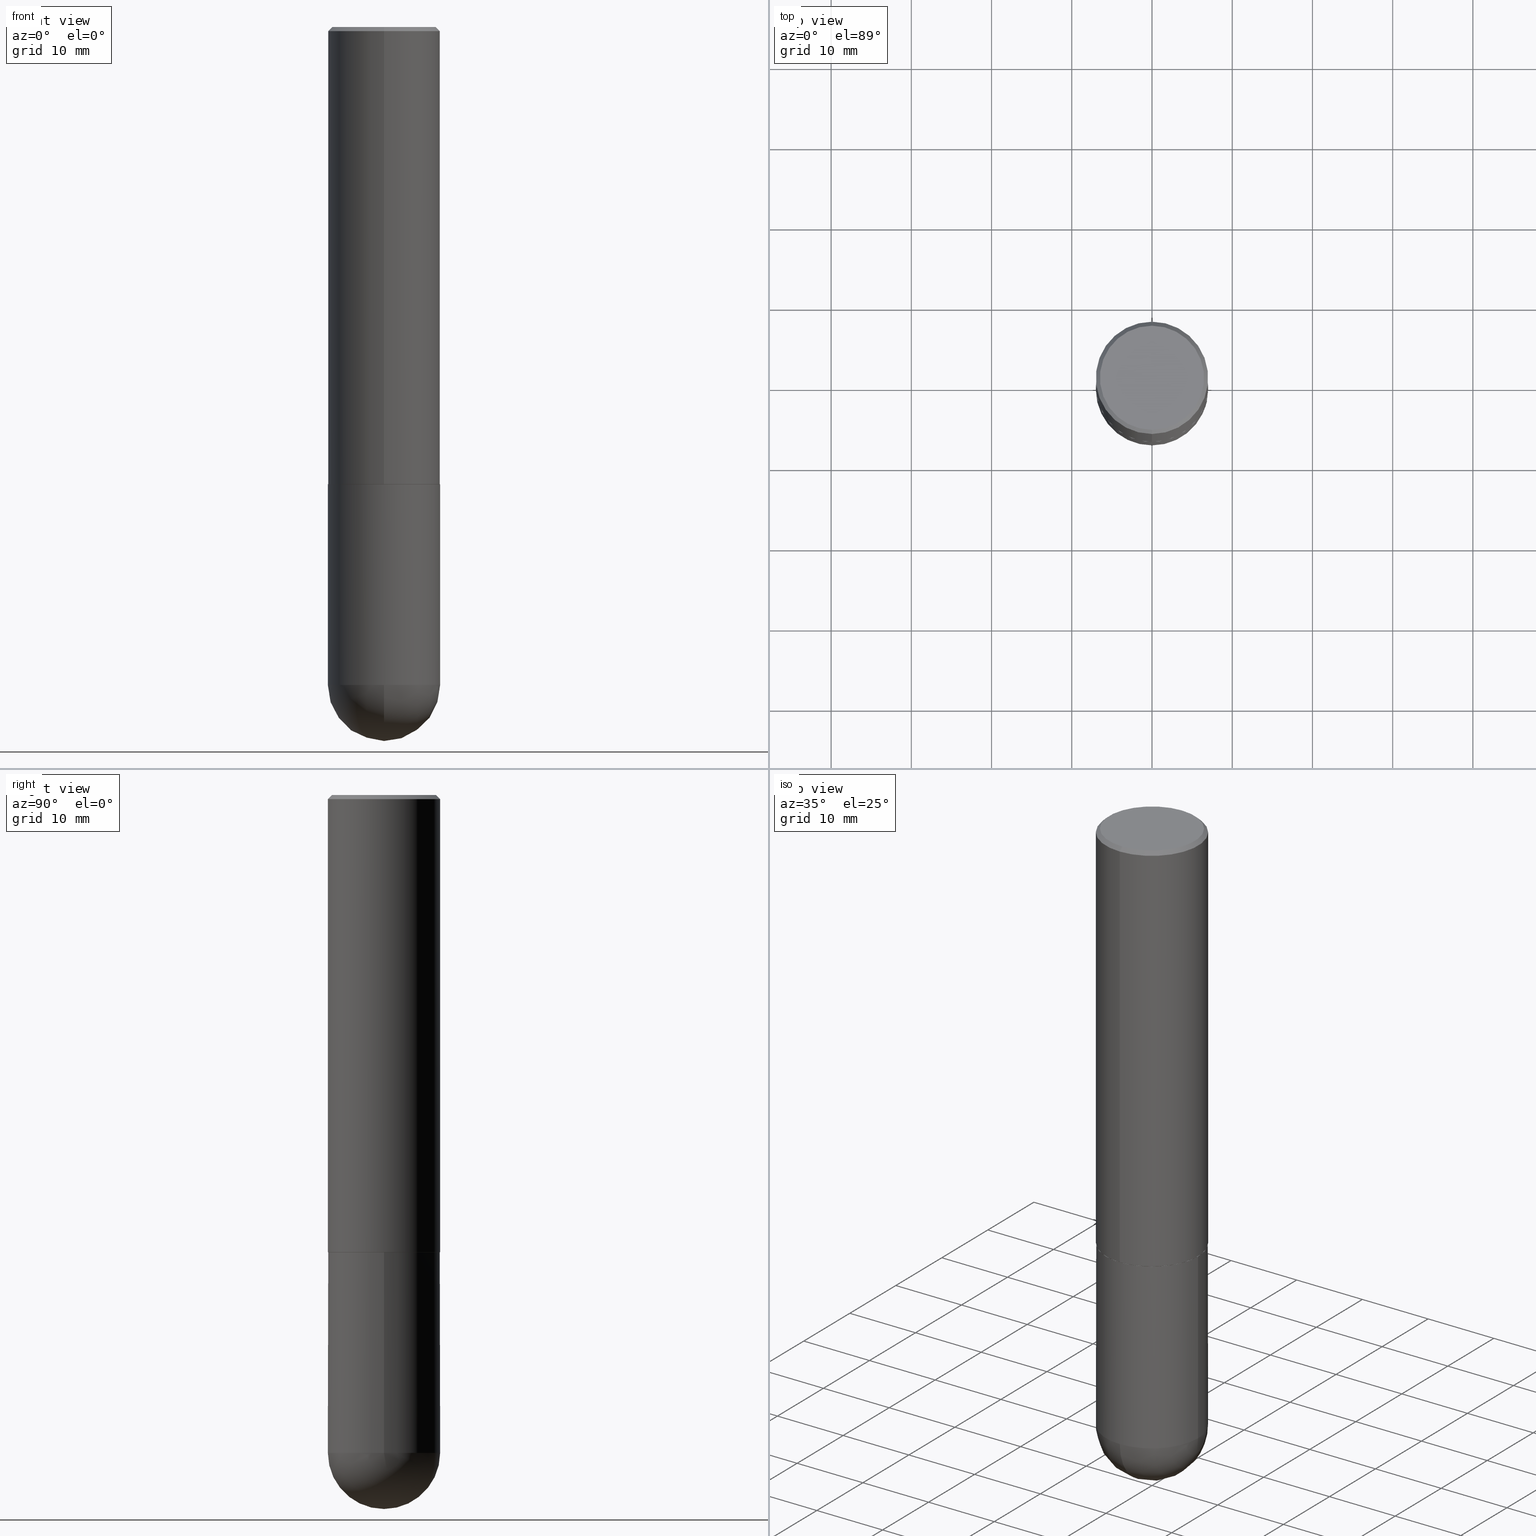
[diagram: canonical four-view strip — front | top / right | iso, engineering-drawing reading convention]
A machine part, canonical four-view strip (front | top / right | iso — engineering-drawing reading convention). The complete STEP part file that produces these views, byte-faithful:
ISO-10303-21;
HEADER;
FILE_DESCRIPTION (( 'STEP AP203' ),
    '1' );
FILE_NAME ('48623.STEP',
    '2024-04-10T11:55:27',
    ( '' ),
    ( '' ),
    'SwSTEP 2.0',
    'SolidWorks 2023',
    '' );
FILE_SCHEMA (( 'CONFIG_CONTROL_DESIGN' ));
ENDSEC;

DATA;
#1 = PERSON_AND_ORGANIZATION_ROLE ( 'creator' ) ;
#2 = CIRCLE ( 'NONE', #48, 0.2756000000000003447 ) ;
#3 = CARTESIAN_POINT ( 'NONE',  ( -1.890753248185833319E-15, -0.2756000000000000671, -0.01999999999999910530 ) ) ;
#4 = DIRECTION ( 'NONE',  ( 1.000000000000000000, -6.982962677686264344E-15, 0.000000000000000000 ) ) ;
#5 = CARTESIAN_POINT ( 'NONE',  ( -5.112458463138739389E-45, 7.297132951663266301E-31, 2.090283529609242950E-16 ) ) ;
#6 = CYLINDRICAL_SURFACE ( 'NONE', #10, 0.2756000000000001227 ) ;
#7 = CARTESIAN_POINT ( 'NONE',  ( 5.488665951108736659E-29, -7.834102802258964265E-15, -2.244099999999999540 ) ) ;
#8 = DIRECTION ( 'NONE',  ( -2.445468806185136597E-29, 3.491481338843145583E-15, 1.000000000000000000 ) ) ;
#9 = ADVANCED_BREP_SHAPE_REPRESENTATION ( '48623', ( #241, #103, #236 ), #183 ) ;
#10 = AXIS2_PLACEMENT_3D ( 'NONE', #327, #168, #170 ) ;
#11 = APPROVAL_DATE_TIME ( #206, #302 ) ;
#12 = EDGE_CURVE ( 'NONE', #374, #252, #184, .T. ) ;
#13 = CC_DESIGN_DATE_AND_TIME_ASSIGNMENT ( #59, #24, ( #300 ) ) ;
#14 = VECTOR ( 'NONE', #200, 39.37007874015748143 ) ;
#15 = EDGE_LOOP ( 'NONE', ( #256, #92, #86, #65, #49 ) ) ;
#16 = DIRECTION ( 'NONE',  ( -2.445468806185136877E-29, 3.491481338843145188E-15, 1.000000000000000000 ) ) ;
#17 = ADVANCED_FACE ( 'NONE', ( #159 ), #286, .T. ) ;
#18 = ORIENTED_EDGE ( 'NONE', *, *, #85, .F. ) ;
#19 = ORIENTED_EDGE ( 'NONE', *, *, #280, .T. ) ;
#20 = CIRCLE ( 'NONE', #304, 0.2756000000000000671 ) ;
#21 = AXIS2_PLACEMENT_3D ( 'NONE', #398, #245, #340 ) ;
#22 = ADVANCED_FACE ( 'NONE', ( #160 ), #100, .T. ) ;
#23 = ORIENTED_EDGE ( 'NONE', *, *, #162, .F. ) ;
#24 = DATE_TIME_ROLE ( 'creation_date' ) ;
#25 = DIRECTION ( 'NONE',  ( -2.445468806185136597E-29, 3.491481338843145583E-15, 1.000000000000000000 ) ) ;
#26 = PRODUCT_DEFINITION_FORMATION_WITH_SPECIFIED_SOURCE ( 'ANY', '', #267, .NOT_KNOWN. ) ;
#27 = ORIENTED_EDGE ( 'NONE', *, *, #30, .T. ) ;
#28 = AXIS2_PLACEMENT_3D ( 'NONE', #217, #343, #189 ) ;
#29 = PERSON_AND_ORGANIZATION_ROLE ( 'creator' ) ;
#30 = EDGE_CURVE ( 'NONE', #224, #301, #212, .T. ) ;
#31 = DIRECTION ( 'NONE',  ( -6.982962677686265922E-15, -1.000000000000000000, 3.490977586675712751E-15 ) ) ;
#32 = ORIENTED_EDGE ( 'NONE', *, *, #205, .T. ) ;
#33 = DATE_AND_TIME ( #350, #272 ) ;
#34 = SPHERICAL_SURFACE ( 'NONE', #28, 0.2756000000000003447 ) ;
#35 = VERTEX_POINT ( 'NONE', #98 ) ;
#36 = COORDINATED_UNIVERSAL_TIME_OFFSET ( 5, 0, .BEHIND. ) ;
#37 = CARTESIAN_POINT ( 'NONE',  ( 1.924504513970413840E-15, 0.2755999999999887429, -3.228300000000000836 ) ) ;
#38 = CC_DESIGN_SECURITY_CLASSIFICATION ( #230, ( #26 ) ) ;
#39 = ORIENTED_EDGE ( 'NONE', *, *, #181, .T. ) ;
#40 = CARTESIAN_POINT ( 'NONE',  ( 7.563587169093589749E-29, -1.174573157432737594E-14, -3.228299999999999503 ) ) ;
#41 = LINE ( 'NONE', #42, #177 ) ;
#42 = CARTESIAN_POINT ( 'NONE',  ( 1.924504513970335348E-15, 0.2755999999999999006, -0.02000000000000102390 ) ) ;
#43 = VECTOR ( 'NONE', #191, 39.37007874015748143 ) ;
#44 = AXIS2_PLACEMENT_3D ( 'NONE', #146, #152, #366 ) ;
#45 = VERTEX_POINT ( 'NONE', #390 ) ;
#46 = CC_DESIGN_PERSON_AND_ORGANIZATION_ASSIGNMENT ( #196, #1, ( #26 ) ) ;
#47 = VERTEX_POINT ( 'NONE', #297 ) ;
#48 = AXIS2_PLACEMENT_3D ( 'NONE', #40, #285, #225 ) ;
#49 = ORIENTED_EDGE ( 'NONE', *, *, #351, .F. ) ;
#50 = PERSON_AND_ORGANIZATION ( #367, #277 ) ;
#51 = CARTESIAN_POINT ( 'NONE',  ( 0.2756000000000000671, -1.147789575331294974E-14, -3.228299999999999503 ) ) ;
#52 = CARTESIAN_POINT ( 'NONE',  ( 0.000000000000000000, 0.000000000000000000, 0.000000000000000000 ) ) ;
#53 = ORIENTED_EDGE ( 'NONE', *, *, #299, .F. ) ;
#54 = EDGE_CURVE ( 'NONE', #292, #295, #176, .T. ) ;
#55 = CARTESIAN_POINT ( 'NONE',  ( -1.822148268208117593E-15, -0.2555999999999997718, 1.101322224115235608E-15 ) ) ;
#56 = ORIENTED_EDGE ( 'NONE', *, *, #395, .F. ) ;
#57 = CIRCLE ( 'NONE', #166, 0.2756000000000002892 ) ;
#58 = UNCERTAINTY_MEASURE_WITH_UNIT (LENGTH_MEASURE( 1.000000000000000082E-05 ), #265, 'distance_accuracy_value', 'NONE');
#59 = DATE_AND_TIME ( #408, #333 ) ;
#60 = FACE_OUTER_BOUND ( 'NONE', #246, .T. ) ;
#61 = EDGE_CURVE ( 'NONE', #35, #224, #369, .T. ) ;
#62 = ORIENTED_EDGE ( 'NONE', *, *, #12, .F. ) ;
#63 = APPROVAL_DATE_TIME ( #33, #323 ) ;
#64 = CARTESIAN_POINT ( 'NONE',  ( -1.924504513970335743E-15, -0.2756000000000001227, 9.621134228878268423E-16 ) ) ;
#65 = ORIENTED_EDGE ( 'NONE', *, *, #395, .T. ) ;
#66 = DIRECTION ( 'NONE',  ( -4.937700262165053702E-15, -0.7071067811866175168, 0.7071067811864775177 ) ) ;
#67 = FACE_OUTER_BOUND ( 'NONE', #109, .T. ) ;
#68 = DIRECTION ( 'NONE',  ( 4.937700262164542520E-15, 0.7071067811865443531, -0.7071067811865506814 ) ) ;
#69 = FACE_OUTER_BOUND ( 'NONE', #208, .T. ) ;
#70 = DATE_TIME_ROLE ( 'classification_date' ) ;
#71 = AXIS2_PLACEMENT_3D ( 'NONE', #178, #275, #335 ) ;
#72 = DIRECTION ( 'NONE',  ( 1.000000000000000000, 0.000000000000000000, 0.000000000000000000 ) ) ;
#73 = AXIS2_PLACEMENT_3D ( 'NONE', #362, #142, #357 ) ;
#74 = CARTESIAN_POINT ( 'NONE',  ( -0.2756000000000000671, 1.958255779754836589E-15, -1.355658510874252287E-29 ) ) ;
#75 = DIRECTION ( 'NONE',  ( -2.445820574443535340E-29, 3.490977586675712751E-15, 1.000000000000000000 ) ) ;
#76 = EDGE_LOOP ( 'NONE', ( #165, #319 ) ) ;
#77 = CARTESIAN_POINT ( 'NONE',  ( 4.891641148887086514E-31, -6.981955173351448133E-17, -0.02000000000000006287 ) ) ;
#78 = ORIENTED_EDGE ( 'NONE', *, *, #385, .T. ) ;
#79 = EDGE_CURVE ( 'NONE', #292, #47, #41, .T. ) ;
#80 = LOCAL_TIME ( 7, 55, 27.00000000000000000, #105 ) ;
#81 = CARTESIAN_POINT ( 'NONE',  ( -0.2756000000000000671, -7.595135459587778194E-15, -3.228299999999999503 ) ) ;
#82 = AXIS2_PLACEMENT_3D ( 'NONE', #52, #407, #88 ) ;
#83 = VERTEX_POINT ( 'NONE', #233 ) ;
#84 = CARTESIAN_POINT ( 'NONE',  ( 1.954703066076090911E-15, 0.2745999999999921837, -2.244100000000000428 ) ) ;
#85 = EDGE_CURVE ( 'NONE', #317, #252, #232, .T. ) ;
#86 = ORIENTED_EDGE ( 'NONE', *, *, #299, .T. ) ;
#87 = LINE ( 'NONE', #3, #243 ) ;
#88 = DIRECTION ( 'NONE',  ( -6.982962677686265922E-15, -1.000000000000000000, 3.490977586675712751E-15 ) ) ;
#89 = PERSON_AND_ORGANIZATION ( #367, #277 ) ;
#90 = VECTOR ( 'NONE', #127, 39.37007874015748143 ) ;
#91 = DIRECTION ( 'NONE',  ( -2.445820574443535340E-29, 3.490977586675712751E-15, 1.000000000000000000 ) ) ;
#92 = ORIENTED_EDGE ( 'NONE', *, *, #12, .T. ) ;
#93 = APPROVAL_ROLE ( '' ) ;
#94 = FACE_OUTER_BOUND ( 'NONE', #15, .T. ) ;
#95 = ORIENTED_EDGE ( 'NONE', *, *, #240, .F. ) ;
#96 = CARTESIAN_POINT ( 'NONE',  ( 5.488665951108736659E-29, -7.834102802258964265E-15, -2.244099999999999540 ) ) ;
#97 = PRODUCT_RELATED_PRODUCT_CATEGORY ( 'detail', '', ( #267 ) ) ;
#98 = CARTESIAN_POINT ( 'NONE',  ( -1.917521551292593719E-15, -0.2746000000000077823, -2.244099999999998207 ) ) ;
#99 = CARTESIAN_POINT ( 'NONE',  ( 5.488665951108736659E-29, -7.834102802258964265E-15, -2.244099999999999540 ) ) ;
#100 = CONICAL_SURFACE ( 'NONE', #251, 0.2746000000000000107, 0.7853981633975507526 ) ;
#101 = CIRCLE ( 'NONE', #331, 0.2756000000000000671 ) ;
#102 = DIRECTION ( 'NONE',  ( 0.000000000000000000, 0.000000000000000000, 1.000000000000000000 ) ) ;
#103 = MANIFOLD_SOLID_BREP ( 'Body-Move/Copy2[2]', #305 ) ;
#104 = ADVANCED_FACE ( 'NONE', ( #67 ), #6, .T. ) ;
#105 = COORDINATED_UNIVERSAL_TIME_OFFSET ( 5, 0, .BEHIND. ) ;
#106 = CC_DESIGN_PERSON_AND_ORGANIZATION_ASSIGNMENT ( #50, #187, ( #230 ) ) ;
#107 = DATE_AND_TIME ( #185, #155 ) ;
#108 = AXIS2_PLACEMENT_3D ( 'NONE', #77, #75, #114 ) ;
#109 = EDGE_LOOP ( 'NONE', ( #332, #341, #179, #403 ) ) ;
#110 = VERTEX_POINT ( 'NONE', #138 ) ;
#111 = APPROVAL_PERSON_ORGANIZATION ( #380, #290, #220 ) ;
#112 = VECTOR ( 'NONE', #66, 39.37007874015748143 ) ;
#113 = CARTESIAN_POINT ( 'NONE',  ( 1.784845260416607963E-15, 0.2555999999999997718, -7.877796946738491164E-16 ) ) ;
#114 = DIRECTION ( 'NONE',  ( -6.982962677686265922E-15, -1.000000000000000000, 3.484816075009406388E-15 ) ) ;
#115 = DIRECTION ( 'NONE',  ( -6.982962677686265133E-15, -1.000000000000000000, 3.979385278462145862E-15 ) ) ;
#116 = CALENDAR_DATE ( 2024, 10, 4 ) ;
#117 = EDGE_CURVE ( 'NONE', #259, #374, #20, .T. ) ;
#118 = AXIS2_PLACEMENT_3D ( 'NONE', #325, #355, #298 ) ;
#119 = ORIENTED_EDGE ( 'NONE', *, *, #193, .T. ) ;
#120 = APPLICATION_PROTOCOL_DEFINITION ( 'international standard', 'config_control_design', 1994, #201 ) ;
#121 = DIRECTION ( 'NONE',  ( -6.982962677686265922E-15, -1.000000000000000000, 3.484816075009406388E-15 ) ) ;
#122 = ORIENTED_EDGE ( 'NONE', *, *, #321, .T. ) ;
#123 = CC_DESIGN_PERSON_AND_ORGANIZATION_ASSIGNMENT ( #132, #211, ( #26 ) ) ;
#124 = FACE_OUTER_BOUND ( 'NONE', #274, .T. ) ;
#125 = ORIENTED_EDGE ( 'NONE', *, *, #169, .F. ) ;
#126 = APPLICATION_PROTOCOL_DEFINITION ( 'international standard', 'config_control_design', 1994, #342 ) ;
#127 = DIRECTION ( 'NONE',  ( -2.445468806185136877E-29, 3.491481338843145188E-15, 1.000000000000000000 ) ) ;
#128 = AXIS2_PLACEMENT_3D ( 'NONE', #7, #329, #368 ) ;
#129 = DIRECTION ( 'NONE',  ( 1.000000000000000000, -6.982962677686267499E-15, 4.876176775795935793E-29 ) ) ;
#130 = CARTESIAN_POINT ( 'NONE',  ( 5.488665951108736659E-29, -7.834102802258964265E-15, -2.244099999999999540 ) ) ;
#131 = AXIS2_PLACEMENT_3D ( 'NONE', #113, #145, #375 ) ;
#132 = PERSON_AND_ORGANIZATION ( #367, #277 ) ;
#133 = ADVANCED_FACE ( 'NONE', ( #94 ), #135, .T. ) ;
#134 = LENGTH_MEASURE_WITH_UNIT ( LENGTH_MEASURE( 0.02539999999999999897 ), #405 );
#135 = CYLINDRICAL_SURFACE ( 'NONE', #276, 0.2756000000000000671 ) ;
#136 = CARTESIAN_POINT ( 'NONE',  ( 1.951150352397289618E-15, 0.2745999999999921837, -2.244100000000000428 ) ) ;
#137 = DIRECTION ( 'NONE',  ( -2.445820574443535340E-29, 3.490977586675712751E-15, 1.000000000000000000 ) ) ;
#138 = CARTESIAN_POINT ( 'NONE',  ( -1.924504513970282100E-15, -0.2756000000000080608, -2.243099999999998317 ) ) ;
#139 = PERSON_AND_ORGANIZATION ( #367, #277 ) ;
#140 = EDGE_CURVE ( 'NONE', #110, #45, #381, .T. ) ;
#141 = AXIS2_PLACEMENT_3D ( 'NONE', #197, #294, #121 ) ;
#142 = DIRECTION ( 'NONE',  ( -2.445820574443535340E-29, 3.490977586675712751E-15, 1.000000000000000000 ) ) ;
#143 = APPROVAL_PERSON_ORGANIZATION ( #154, #323, #93 ) ;
#144 = AXIS2_PLACEMENT_3D ( 'NONE', #289, #192, #412 ) ;
#145 = DIRECTION ( 'NONE',  ( 2.445820574443535060E-29, -3.490977586675712751E-15, -1.000000000000000000 ) ) ;
#146 = CARTESIAN_POINT ( 'NONE',  ( 1.924504513970389780E-15, 0.2755999999999921846, -2.244100000000000428 ) ) ;
#147 = ORIENTED_EDGE ( 'NONE', *, *, #174, .F. ) ;
#148 = ADVANCED_FACE ( 'NONE', ( #228 ), #387, .F. ) ;
#149 = AXIS2_PLACEMENT_3D ( 'NONE', #358, #203, #268 ) ;
#150 = FACE_OUTER_BOUND ( 'NONE', #344, .T. ) ;
#151 = AXIS2_PLACEMENT_3D ( 'NONE', #316, #239, #231 ) ;
#152 = DIRECTION ( 'NONE',  ( 2.438088387897960049E-29, -3.491481338843145188E-15, -1.000000000000000000 ) ) ;
#153 = EDGE_LOOP ( 'NONE', ( #163, #122, #190, #218 ) ) ;
#154 = PERSON_AND_ORGANIZATION ( #367, #277 ) ;
#155 = LOCAL_TIME ( 7, 55, 27.00000000000000000, #269 ) ;
#156 = DIRECTION ( 'NONE',  ( -2.445820574443535340E-29, 3.490977586675712751E-15, 1.000000000000000000 ) ) ;
#157 = DIRECTION ( 'NONE',  ( -4.851104656540958753E-15, -0.7071067811865492381, -0.7071067811865457964 ) ) ;
#158 = CIRCLE ( 'NONE', #151, 0.2756000000000000671 ) ;
#159 = FACE_OUTER_BOUND ( 'NONE', #195, .T. ) ;
#160 = FACE_OUTER_BOUND ( 'NONE', #153, .T. ) ;
#161 = CARTESIAN_POINT ( 'NONE',  ( 5.486220130534292634E-29, -7.830611824672289154E-15, -2.243099999999999206 ) ) ;
#162 = EDGE_CURVE ( 'NONE', #317, #259, #2, .T. ) ;
#163 = ORIENTED_EDGE ( 'NONE', *, *, #30, .F. ) ;
#164 = SPHERICAL_SURFACE ( 'NONE', #171, 0.2756000000000003447 ) ;
#165 = ORIENTED_EDGE ( 'NONE', *, *, #328, .T. ) ;
#166 = AXIS2_PLACEMENT_3D ( 'NONE', #311, #91, #258 ) ;
#167 = LINE ( 'NONE', #409, #112 ) ;
#168 = DIRECTION ( 'NONE',  ( -2.445820574443535340E-29, 3.490977586675712751E-15, 1.000000000000000000 ) ) ;
#169 = EDGE_CURVE ( 'NONE', #110, #301, #278, .T. ) ;
#170 = DIRECTION ( 'NONE',  ( -6.982962677686265922E-15, -1.000000000000000000, 3.490977586675712751E-15 ) ) ;
#171 = AXIS2_PLACEMENT_3D ( 'NONE', #254, #288, #383 ) ;
#172 = APPROVAL_STATUS ( 'not_yet_approved' ) ;
#173 = SHAPE_DEFINITION_REPRESENTATION ( #356, #9 ) ;
#174 = EDGE_CURVE ( 'NONE', #35, #110, #167, .T. ) ;
#175 = ORIENTED_EDGE ( 'NONE', *, *, #240, .T. ) ;
#176 = CIRCLE ( 'NONE', #118, 0.2555999999999997718 ) ;
#177 = VECTOR ( 'NONE', #68, 39.37007874015748143 ) ;
#178 = CARTESIAN_POINT ( 'NONE',  ( 5.487876547960063631E-29, -7.835233272497900762E-15, -2.244099999999999540 ) ) ;
#179 = ORIENTED_EDGE ( 'NONE', *, *, #364, .F. ) ;
#180 = DIRECTION ( 'NONE',  ( 6.982962677686265922E-15, 1.000000000000000000, -3.484816075009406388E-15 ) ) ;
#181 = EDGE_CURVE ( 'NONE', #295, #45, #87, .T. ) ;
#182 = DIRECTION ( 'NONE',  ( 2.445820574443535340E-29, -3.490977586675712751E-15, -1.000000000000000000 ) ) ;
#183 =( GEOMETRIC_REPRESENTATION_CONTEXT ( 3 ) GLOBAL_UNCERTAINTY_ASSIGNED_CONTEXT ( ( #58 ) ) GLOBAL_UNIT_ASSIGNED_CONTEXT ( ( #265, #216, #281 ) ) REPRESENTATION_CONTEXT ( 'NONE', 'WORKASPACE' ) );
#184 = CIRCLE ( 'NONE', #144, 0.2756000000000000671 ) ;
#185 = CALENDAR_DATE ( 2024, 10, 4 ) ;
#186 = ORIENTED_EDGE ( 'NONE', *, *, #181, .F. ) ;
#187 = PERSON_AND_ORGANIZATION_ROLE ( 'classification_officer' ) ;
#188 = EDGE_LOOP ( 'NONE', ( #388, #376 ) ) ;
#189 = DIRECTION ( 'NONE',  ( 6.982962677686265922E-15, 1.000000000000000000, -3.964946289788475374E-15 ) ) ;
#190 = ORIENTED_EDGE ( 'NONE', *, *, #174, .T. ) ;
#191 = DIRECTION ( 'NONE',  ( -2.445820574443535340E-29, 3.490977586675712751E-15, 1.000000000000000000 ) ) ;
#192 = DIRECTION ( 'NONE',  ( -2.445468806185136597E-29, 3.491481338843145583E-15, 1.000000000000000000 ) ) ;
#193 = EDGE_CURVE ( 'NONE', #301, #110, #57, .T. ) ;
#194 = CARTESIAN_POINT ( 'NONE',  ( 0.000000000000000000, 0.000000000000000000, 0.000000000000000000 ) ) ;
#195 = EDGE_LOOP ( 'NONE', ( #336, #119, #334, #95 ) ) ;
#196 = PERSON_AND_ORGANIZATION ( #367, #277 ) ;
#197 = CARTESIAN_POINT ( 'NONE',  ( 4.891641148887086514E-31, -6.981955173351448133E-17, -0.02000000000000006287 ) ) ;
#198 = ORIENTED_EDGE ( 'NONE', *, *, #117, .T. ) ;
#199 = FACE_OUTER_BOUND ( 'NONE', #312, .T. ) ;
#200 = DIRECTION ( 'NONE',  ( 5.024295867788576727E-15, 0.7071067811866224018, 0.7071067811864726327 ) ) ;
#201 = APPLICATION_CONTEXT ( 'configuration controlled 3d designs of mechanical parts and assemblies' ) ;
#202 = CARTESIAN_POINT ( 'NONE',  ( 8.249342563543106087E-29, -1.269110819842029813E-14, -3.503899999999999793 ) ) ;
#203 = DIRECTION ( 'NONE',  ( -1.000000000000000000, 7.105427357601001070E-15, -4.926315508542082329E-29 ) ) ;
#204 = AXIS2_PLACEMENT_3D ( 'NONE', #291, #348, #213 ) ;
#205 = EDGE_CURVE ( 'NONE', #295, #292, #314, .T. ) ;
#206 = DATE_AND_TIME ( #326, #80 ) ;
#207 = AXIS2_PLACEMENT_3D ( 'NONE', #194, #411, #318 ) ;
#208 = EDGE_LOOP ( 'NONE', ( #309, #27, #125, #147 ) ) ;
#209 = FACE_OUTER_BOUND ( 'NONE', #400, .T. ) ;
#210 = ORIENTED_EDGE ( 'NONE', *, *, #85, .T. ) ;
#211 = PERSON_AND_ORGANIZATION_ROLE ( 'design_supplier' ) ;
#212 = LINE ( 'NONE', #136, #14 ) ;
#213 = DIRECTION ( 'NONE',  ( 6.982962677686265922E-15, 1.000000000000000000, -3.484816075009406388E-15 ) ) ;
#214 = ORIENTED_EDGE ( 'NONE', *, *, #54, .T. ) ;
#215 = COORDINATED_UNIVERSAL_TIME_OFFSET ( 5, 0, .BEHIND. ) ;
#216 =( NAMED_UNIT ( * ) PLANE_ANGLE_UNIT ( ) SI_UNIT ( $, .RADIAN. ) );
#217 = CARTESIAN_POINT ( 'NONE',  ( 7.563587169093589749E-29, -1.174573157432737594E-14, -3.228299999999999503 ) ) ;
#218 = ORIENTED_EDGE ( 'NONE', *, *, #193, .F. ) ;
#219 = DESIGN_CONTEXT ( 'detailed design', #342, 'design' ) ;
#220 = APPROVAL_ROLE ( '' ) ;
#221 = ADVANCED_FACE ( 'NONE', ( #124 ), #164, .T. ) ;
#222 = DIRECTION ( 'NONE',  ( -6.982962677686265922E-15, -1.000000000000000000, 3.490977586675711963E-15 ) ) ;
#223 = CIRCLE ( 'NONE', #21, 0.2756000000000000116 ) ;
#224 = VERTEX_POINT ( 'NONE', #84 ) ;
#225 = DIRECTION ( 'NONE',  ( 6.982962677686265922E-15, 1.000000000000000000, 0.000000000000000000 ) ) ;
#226 = CC_DESIGN_PERSON_AND_ORGANIZATION_ASSIGNMENT ( #307, #29, ( #300 ) ) ;
#227 = ORIENTED_EDGE ( 'NONE', *, *, #79, .F. ) ;
#228 = FACE_OUTER_BOUND ( 'NONE', #188, .T. ) ;
#229 = DIRECTION ( 'NONE',  ( -2.445820574443535340E-29, 3.490977586675712751E-15, 1.000000000000000000 ) ) ;
#230 = SECURITY_CLASSIFICATION ( '', '', #339 ) ;
#231 = DIRECTION ( 'NONE',  ( 1.000000000000000000, -6.982962677686264344E-15, 0.000000000000000000 ) ) ;
#232 = CIRCLE ( 'NONE', #149, 0.2756000000000003447 ) ;
#233 = CARTESIAN_POINT ( 'NONE',  ( 0.2756000000000000116, -9.759737786468235716E-15, -2.244099999999999540 ) ) ;
#234 = CARTESIAN_POINT ( 'NONE',  ( 1.958255779754864988E-15, 0.2755999999999924621, -2.243100000000000538 ) ) ;
#235 = APPROVAL_ROLE ( '' ) ;
#236 = AXIS2_PLACEMENT_3D ( 'NONE', #393, #102, #72 ) ;
#237 = CC_DESIGN_APPROVAL ( #290, ( #300 ) ) ;
#238 = CIRCLE ( 'NONE', #71, 0.2756000000000000116 ) ;
#239 = DIRECTION ( 'NONE',  ( -2.445468806185136597E-29, 3.491481338843145583E-15, 1.000000000000000000 ) ) ;
#240 = EDGE_CURVE ( 'NONE', #47, #45, #396, .T. ) ;
#241 = MANIFOLD_SOLID_BREP ( 'Body-Move/Copy2[1]', #392 ) ;
#242 = CC_DESIGN_APPROVAL ( #302, ( #230 ) ) ;
#243 = VECTOR ( 'NONE', #157, 39.37007874015748143 ) ;
#244 = CC_DESIGN_DATE_AND_TIME_ASSIGNMENT ( #107, #70, ( #230 ) ) ;
#245 = DIRECTION ( 'NONE',  ( -2.445468806185136597E-29, 3.491481338843145583E-15, 1.000000000000000000 ) ) ;
#246 = EDGE_LOOP ( 'NONE', ( #198, #78, #303, #56, #19 ) ) ;
#247 = LINE ( 'NONE', #74, #363 ) ;
#248 = ADVANCED_FACE ( 'NONE', ( #266 ), #386, .T. ) ;
#249 = ORIENTED_EDGE ( 'NONE', *, *, #54, .F. ) ;
#250 = DATE_AND_TIME ( #116, #338 ) ;
#251 = AXIS2_PLACEMENT_3D ( 'NONE', #130, #264, #115 ) ;
#252 = VERTEX_POINT ( 'NONE', #354 ) ;
#253 = COORDINATED_UNIVERSAL_TIME_OFFSET ( 5, 0, .BEHIND. ) ;
#254 = CARTESIAN_POINT ( 'NONE',  ( 7.563587169093589749E-29, -1.174573157432737594E-14, -3.228299999999999503 ) ) ;
#255 = ADVANCED_FACE ( 'NONE', ( #60 ), #320, .T. ) ;
#256 = ORIENTED_EDGE ( 'NONE', *, *, #385, .F. ) ;
#257 = APPROVAL_STATUS ( 'not_yet_approved' ) ;
#258 = DIRECTION ( 'NONE',  ( -6.982962677686265922E-15, -1.000000000000000000, 3.964946289788476952E-15 ) ) ;
#259 = VERTEX_POINT ( 'NONE', #37 ) ;
#260 = CONICAL_SURFACE ( 'NONE', #361, 0.2756000000000000116, 0.7853981633974472798 ) ;
#261 = APPROVAL_PERSON_ORGANIZATION ( #139, #302, #235 ) ;
#262 = CARTESIAN_POINT ( 'NONE',  ( 1.854674887193471656E-15, 0.2555999999999997718, -6.832655181933870183E-16 ) ) ;
#263 = CIRCLE ( 'NONE', #108, 0.2756000000000000116 ) ;
#264 = DIRECTION ( 'NONE',  ( -2.445820574443535340E-29, 3.490977586675712751E-15, 1.000000000000000000 ) ) ;
#265 =( CONVERSION_BASED_UNIT ( 'INCH', #134 ) LENGTH_UNIT ( ) NAMED_UNIT ( #371 ) );
#266 = FACE_OUTER_BOUND ( 'NONE', #322, .T. ) ;
#267 = PRODUCT ( '48623', '48623', '', ( #394 ) ) ;
#268 = DIRECTION ( 'NONE',  ( -7.105427357601001859E-15, -1.000000000000000000, 0.000000000000000000 ) ) ;
#269 = COORDINATED_UNIVERSAL_TIME_OFFSET ( 5, 0, .BEHIND. ) ;
#270 = CARTESIAN_POINT ( 'NONE',  ( 7.894706947007475996E-29, -1.127154920618732565E-14, -3.228299999999999503 ) ) ;
#271 = ADVANCED_FACE ( 'NONE', ( #199 ), #34, .T. ) ;
#272 = LOCAL_TIME ( 7, 55, 27.00000000000000000, #253 ) ;
#273 = CARTESIAN_POINT ( 'NONE',  ( -0.2756000000000000116, -7.595135459587776616E-15, -2.244099999999999540 ) ) ;
#274 = EDGE_LOOP ( 'NONE', ( #18, #379, #410, #53 ) ) ;
#275 = DIRECTION ( 'NONE',  ( -2.445468806185136597E-29, 3.491481338843145583E-15, 1.000000000000000000 ) ) ;
#276 = AXIS2_PLACEMENT_3D ( 'NONE', #324, #378, #129 ) ;
#277 = ORGANIZATION ( 'UNSPECIFIED', 'UNSPECIFIED', '' ) ;
#278 = CIRCLE ( 'NONE', #370, 0.2756000000000002892 ) ;
#279 = PLANE ( 'NONE',  #131 ) ;
#280 = EDGE_CURVE ( 'NONE', #346, #259, #101, .T. ) ;
#281 =( NAMED_UNIT ( * ) SI_UNIT ( $, .STERADIAN. ) SOLID_ANGLE_UNIT ( ) );
#282 = ORIENTED_EDGE ( 'NONE', *, *, #364, .T. ) ;
#283 = AXIS2_PLACEMENT_3D ( 'NONE', #99, #229, #391 ) ;
#284 = AXIS2_PLACEMENT_3D ( 'NONE', #5, #137, #222 ) ;
#285 = DIRECTION ( 'NONE',  ( 1.000000000000000000, -6.982962677686265922E-15, 4.883557194083112340E-29 ) ) ;
#286 = CYLINDRICAL_SURFACE ( 'NONE', #82, 0.2756000000000001227 ) ;
#287 = CARTESIAN_POINT ( 'NONE',  ( 1.958255779754836589E-15, 0.2756000000000001227, -9.621134228878268423E-16 ) ) ;
#288 = DIRECTION ( 'NONE',  ( -1.000000000000000000, 6.982962677686265922E-15, -4.883557194083112340E-29 ) ) ;
#289 = CARTESIAN_POINT ( 'NONE',  ( 7.894706947007475996E-29, -1.127154920618732565E-14, -3.228299999999999503 ) ) ;
#290 = APPROVAL ( #313, 'UNSPECIFIED' ) ;
#291 = CARTESIAN_POINT ( 'NONE',  ( 4.891641148887086514E-31, -6.981955173351448133E-17, -0.02000000000000006287 ) ) ;
#292 = VERTEX_POINT ( 'NONE', #262 ) ;
#293 = CC_DESIGN_APPROVAL ( #323, ( #26 ) ) ;
#294 = DIRECTION ( 'NONE',  ( -2.445820574443535340E-29, 3.490977586675712751E-15, 1.000000000000000000 ) ) ;
#295 = VERTEX_POINT ( 'NONE', #55 ) ;
#296 = DIRECTION ( 'NONE',  ( -2.445820574443535060E-29, 3.490977586675712751E-15, 1.000000000000000000 ) ) ;
#297 = CARTESIAN_POINT ( 'NONE',  ( 1.924504513970335348E-15, 0.2755999999999999006, -0.02000000000000102390 ) ) ;
#298 = DIRECTION ( 'NONE',  ( -6.982962677686265922E-15, -1.000000000000000000, 3.490977586675711963E-15 ) ) ;
#299 = EDGE_CURVE ( 'NONE', #252, #346, #158, .T. ) ;
#300 = PRODUCT_DEFINITION ( 'UNKNOWN', '', #26, #219 ) ;
#301 = VERTEX_POINT ( 'NONE', #234 ) ;
#302 = APPROVAL ( #172, 'UNSPECIFIED' ) ;
#303 = ORIENTED_EDGE ( 'NONE', *, *, #328, .F. ) ;
#304 = AXIS2_PLACEMENT_3D ( 'NONE', #270, #8, #4 ) ;
#305 = CLOSED_SHELL ( 'NONE', ( #310, #104, #365, #248, #17, #22, #148, #372 ) ) ;
#306 = CIRCLE ( 'NONE', #128, 0.2746000000000000107 ) ;
#307 = PERSON_AND_ORGANIZATION ( #367, #277 ) ;
#308 = PLANE ( 'NONE',  #44 ) ;
#309 = ORIENTED_EDGE ( 'NONE', *, *, #61, .T. ) ;
#310 = ADVANCED_FACE ( 'NONE', ( #69 ), #401, .T. ) ;
#311 = CARTESIAN_POINT ( 'NONE',  ( 5.486220130534292634E-29, -7.830611824672289154E-15, -2.243099999999999206 ) ) ;
#312 = EDGE_LOOP ( 'NONE', ( #23, #210, #62, #353 ) ) ;
#313 = APPROVAL_STATUS ( 'not_yet_approved' ) ;
#314 = CIRCLE ( 'NONE', #284, 0.2555999999999997718 ) ;
#315 = CARTESIAN_POINT ( 'NONE',  ( 0.2756000000000000671, -1.924504513970335743E-15, 1.343874319409360268E-29 ) ) ;
#316 = CARTESIAN_POINT ( 'NONE',  ( 7.894706947007475996E-29, -1.127154920618732565E-14, -3.228299999999999503 ) ) ;
#317 = VERTEX_POINT ( 'NONE', #202 ) ;
#318 = DIRECTION ( 'NONE',  ( 1.000000000000000000, -6.982962677686267499E-15, 4.876176775795935793E-29 ) ) ;
#319 = ORIENTED_EDGE ( 'NONE', *, *, #351, .T. ) ;
#320 = CYLINDRICAL_SURFACE ( 'NONE', #207, 0.2756000000000000671 ) ;
#321 = EDGE_CURVE ( 'NONE', #224, #35, #306, .T. ) ;
#322 = EDGE_LOOP ( 'NONE', ( #186, #249, #382, #175 ) ) ;
#323 = APPROVAL ( #257, 'UNSPECIFIED' ) ;
#324 = CARTESIAN_POINT ( 'NONE',  ( 0.000000000000000000, 0.000000000000000000, 0.000000000000000000 ) ) ;
#325 = CARTESIAN_POINT ( 'NONE',  ( -5.112458463138739389E-45, 7.297132951663266301E-31, 2.090283529609242950E-16 ) ) ;
#326 = CALENDAR_DATE ( 2024, 10, 4 ) ;
#327 = CARTESIAN_POINT ( 'NONE',  ( 0.000000000000000000, 0.000000000000000000, 0.000000000000000000 ) ) ;
#328 = EDGE_CURVE ( 'NONE', #83, #384, #223, .T. ) ;
#329 = DIRECTION ( 'NONE',  ( -2.445820574443535340E-29, 3.490977586675712751E-15, 1.000000000000000000 ) ) ;
#330 = VECTOR ( 'NONE', #156, 39.37007874015748143 ) ;
#331 = AXIS2_PLACEMENT_3D ( 'NONE', #345, #25, #389 ) ;
#332 = ORIENTED_EDGE ( 'NONE', *, *, #169, .T. ) ;
#333 = LOCAL_TIME ( 7, 55, 27.00000000000000000, #215 ) ;
#334 = ORIENTED_EDGE ( 'NONE', *, *, #140, .T. ) ;
#335 = DIRECTION ( 'NONE',  ( 1.000000000000000000, -6.982962677686265922E-15, 0.000000000000000000 ) ) ;
#336 = ORIENTED_EDGE ( 'NONE', *, *, #399, .F. ) ;
#337 = CARTESIAN_POINT ( 'NONE',  ( 4.891641148887086514E-31, -6.981955173351448133E-17, -0.02000000000000006287 ) ) ;
#338 = LOCAL_TIME ( 7, 55, 27.00000000000000000, #36 ) ;
#339 = SECURITY_CLASSIFICATION_LEVEL ( 'unclassified' ) ;
#340 = DIRECTION ( 'NONE',  ( 1.000000000000000000, -6.982962677686265922E-15, 0.000000000000000000 ) ) ;
#341 = ORIENTED_EDGE ( 'NONE', *, *, #399, .T. ) ;
#342 = APPLICATION_CONTEXT ( 'configuration controlled 3d designs of mechanical parts and assemblies' ) ;
#343 = DIRECTION ( 'NONE',  ( -1.000000000000000000, 6.982962677686265922E-15, -4.883557194083112340E-29 ) ) ;
#344 = EDGE_LOOP ( 'NONE', ( #214, #32 ) ) ;
#345 = CARTESIAN_POINT ( 'NONE',  ( 7.894706947007475996E-29, -1.127154920618732565E-14, -3.228299999999999503 ) ) ;
#346 = VERTEX_POINT ( 'NONE', #51 ) ;
#347 = APPROVAL_DATE_TIME ( #250, #290 ) ;
#348 = DIRECTION ( 'NONE',  ( 2.445820574443535340E-29, -3.490977586675712751E-15, -1.000000000000000000 ) ) ;
#349 = ORIENTED_EDGE ( 'NONE', *, *, #205, .F. ) ;
#350 = CALENDAR_DATE ( 2024, 10, 4 ) ;
#351 = EDGE_CURVE ( 'NONE', #384, #83, #238, .T. ) ;
#352 = DIRECTION ( 'NONE',  ( -2.445820574443535340E-29, 3.490977586675712751E-15, 1.000000000000000000 ) ) ;
#353 = ORIENTED_EDGE ( 'NONE', *, *, #117, .F. ) ;
#354 = CARTESIAN_POINT ( 'NONE',  ( -1.958255779754759675E-15, -0.2756000000000117245, -3.228299999999998615 ) ) ;
#355 = DIRECTION ( 'NONE',  ( -2.445820574443535340E-29, 3.490977586675712751E-15, 1.000000000000000000 ) ) ;
#356 = PRODUCT_DEFINITION_SHAPE ( 'NONE', 'NONE',  #300 ) ;
#357 = DIRECTION ( 'NONE',  ( -6.982962677686265133E-15, -1.000000000000000000, 3.979385278462145862E-15 ) ) ;
#358 = CARTESIAN_POINT ( 'NONE',  ( 7.563587169093589749E-29, -1.174573157432737594E-14, -3.228299999999999503 ) ) ;
#359 = ADVANCED_FACE ( 'NONE', ( #373 ), #308, .F. ) ;
#360 = CC_DESIGN_PERSON_AND_ORGANIZATION_ASSIGNMENT ( #89, #402, ( #267 ) ) ;
#361 = AXIS2_PLACEMENT_3D ( 'NONE', #337, #182, #180 ) ;
#362 = CARTESIAN_POINT ( 'NONE',  ( 5.488665951108736659E-29, -7.834102802258964265E-15, -2.244099999999999540 ) ) ;
#363 = VECTOR ( 'NONE', #16, 39.37007874015748143 ) ;
#364 = EDGE_CURVE ( 'NONE', #45, #47, #263, .T. ) ;
#365 = ADVANCED_FACE ( 'NONE', ( #209 ), #260, .T. ) ;
#366 = DIRECTION ( 'NONE',  ( -1.000000000000000000, 6.982962677686265922E-15, -4.876176775795935793E-29 ) ) ;
#367 = PERSON ( 'UNSPECIFIED', 'UNSPECIFIED', 'UNSPECIFIED', ('UNSPECIFIED'), ('UNSPECIFIED'), ('UNSPECIFIED') ) ;
#368 = DIRECTION ( 'NONE',  ( -6.982962677686265133E-15, -1.000000000000000000, 3.979385278462145862E-15 ) ) ;
#369 = CIRCLE ( 'NONE', #283, 0.2746000000000000107 ) ;
#370 = AXIS2_PLACEMENT_3D ( 'NONE', #161, #352, #406 ) ;
#371 = DIMENSIONAL_EXPONENTS ( 1.000000000000000000, 0.000000000000000000, 0.000000000000000000, 0.000000000000000000, 0.000000000000000000, 0.000000000000000000, 0.000000000000000000 ) ;
#372 = ADVANCED_FACE ( 'NONE', ( #150 ), #279, .F. ) ;
#373 = FACE_OUTER_BOUND ( 'NONE', #76, .T. ) ;
#374 = VERTEX_POINT ( 'NONE', #81 ) ;
#375 = DIRECTION ( 'NONE',  ( 6.982962677686265922E-15, 1.000000000000000000, -3.490977586675712751E-15 ) ) ;
#376 = ORIENTED_EDGE ( 'NONE', *, *, #321, .F. ) ;
#377 = LINE ( 'NONE', #287, #330 ) ;
#378 = DIRECTION ( 'NONE',  ( -2.445468806185136597E-29, 3.491481338843145583E-15, 1.000000000000000000 ) ) ;
#379 = ORIENTED_EDGE ( 'NONE', *, *, #162, .T. ) ;
#380 = PERSON_AND_ORGANIZATION ( #367, #277 ) ;
#381 = LINE ( 'NONE', #64, #43 ) ;
#382 = ORIENTED_EDGE ( 'NONE', *, *, #79, .T. ) ;
#383 = DIRECTION ( 'NONE',  ( 6.982962677686265922E-15, 1.000000000000000000, -3.964946289788475374E-15 ) ) ;
#384 = VERTEX_POINT ( 'NONE', #273 ) ;
#385 = EDGE_CURVE ( 'NONE', #374, #384, #247, .T. ) ;
#386 = CONICAL_SURFACE ( 'NONE', #204, 0.2756000000000000116, 0.7853981633974472798 ) ;
#387 = PLANE ( 'NONE',  #404 ) ;
#388 = ORIENTED_EDGE ( 'NONE', *, *, #61, .F. ) ;
#389 = DIRECTION ( 'NONE',  ( 1.000000000000000000, -6.982962677686264344E-15, 0.000000000000000000 ) ) ;
#390 = CARTESIAN_POINT ( 'NONE',  ( -1.890753248185833319E-15, -0.2756000000000000671, -0.01999999999999910530 ) ) ;
#391 = DIRECTION ( 'NONE',  ( -6.982962677686265133E-15, -1.000000000000000000, 3.979385278462145862E-15 ) ) ;
#392 = CLOSED_SHELL ( 'NONE', ( #255, #271, #221, #359, #133 ) ) ;
#393 = CARTESIAN_POINT ( 'NONE',  ( 0.000000000000000000, 0.000000000000000000, 0.000000000000000000 ) ) ;
#394 = MECHANICAL_CONTEXT ( 'NONE', #201, 'mechanical' ) ;
#395 = EDGE_CURVE ( 'NONE', #346, #83, #397, .T. ) ;
#396 = CIRCLE ( 'NONE', #141, 0.2756000000000000116 ) ;
#397 = LINE ( 'NONE', #315, #90 ) ;
#398 = CARTESIAN_POINT ( 'NONE',  ( 5.487876547960063631E-29, -7.835233272497900762E-15, -2.244099999999999540 ) ) ;
#399 = EDGE_CURVE ( 'NONE', #301, #47, #377, .T. ) ;
#400 = EDGE_LOOP ( 'NONE', ( #349, #39, #282, #227 ) ) ;
#401 = CONICAL_SURFACE ( 'NONE', #73, 0.2746000000000000107, 0.7853981633975507526 ) ;
#402 = PERSON_AND_ORGANIZATION_ROLE ( 'design_owner' ) ;
#403 = ORIENTED_EDGE ( 'NONE', *, *, #140, .F. ) ;
#404 = AXIS2_PLACEMENT_3D ( 'NONE', #96, #296, #31 ) ;
#405 =( LENGTH_UNIT ( ) NAMED_UNIT ( * ) SI_UNIT ( $, .METRE. ) );
#406 = DIRECTION ( 'NONE',  ( -6.982962677686265922E-15, -1.000000000000000000, 3.964946289788476952E-15 ) ) ;
#407 = DIRECTION ( 'NONE',  ( -2.445820574443535340E-29, 3.490977586675712751E-15, 1.000000000000000000 ) ) ;
#408 = CALENDAR_DATE ( 2024, 10, 4 ) ;
#409 = CARTESIAN_POINT ( 'NONE',  ( -1.917521551292593719E-15, -0.2746000000000077823, -2.244099999999998207 ) ) ;
#410 = ORIENTED_EDGE ( 'NONE', *, *, #280, .F. ) ;
#411 = DIRECTION ( 'NONE',  ( -2.445468806185136597E-29, 3.491481338843145583E-15, 1.000000000000000000 ) ) ;
#412 = DIRECTION ( 'NONE',  ( 1.000000000000000000, -6.982962677686264344E-15, 0.000000000000000000 ) ) ;
ENDSEC;
END-ISO-10303-21;
